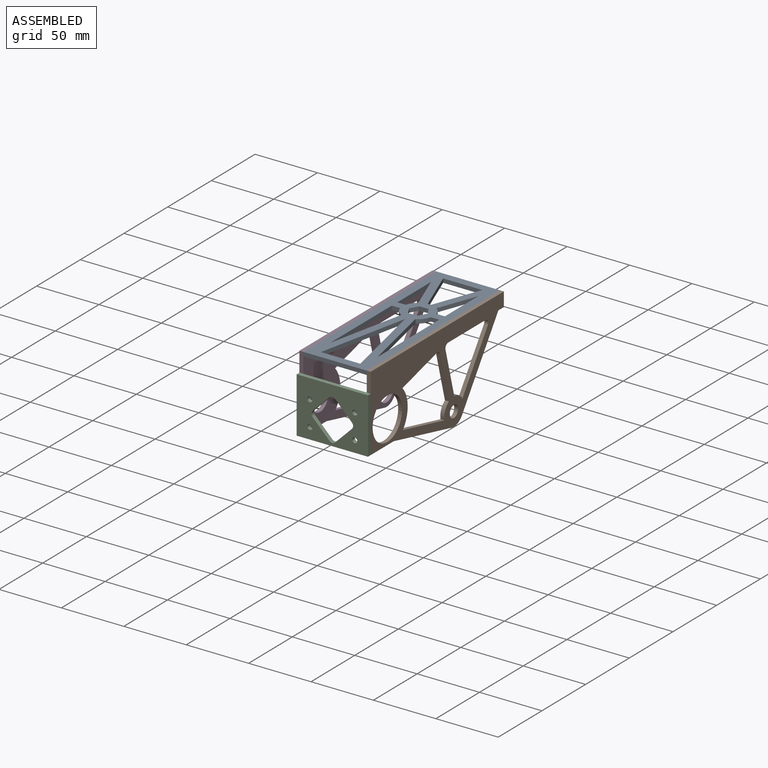
[diagram: assembled view]
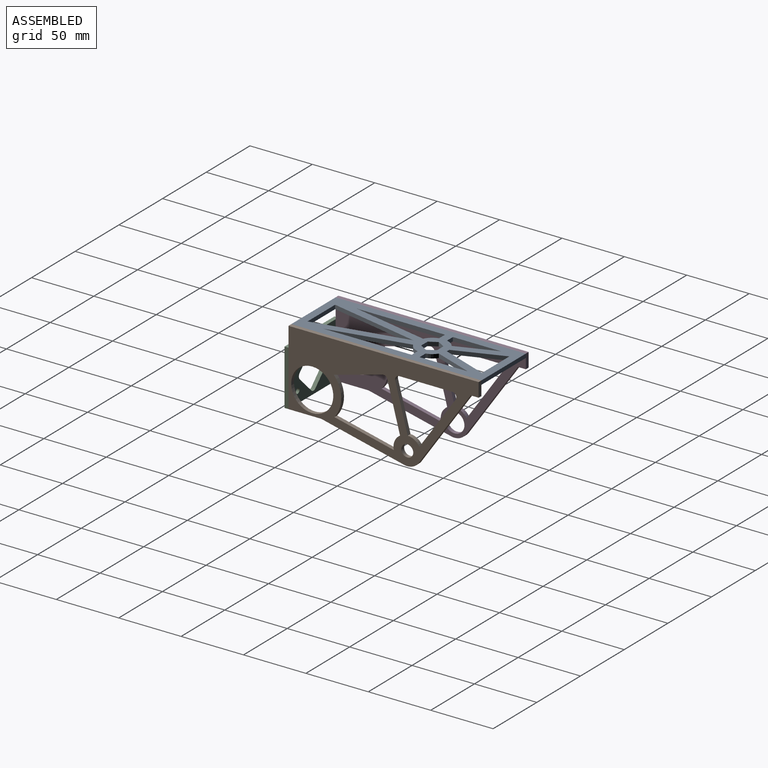
[diagram: assembled view, second angle]
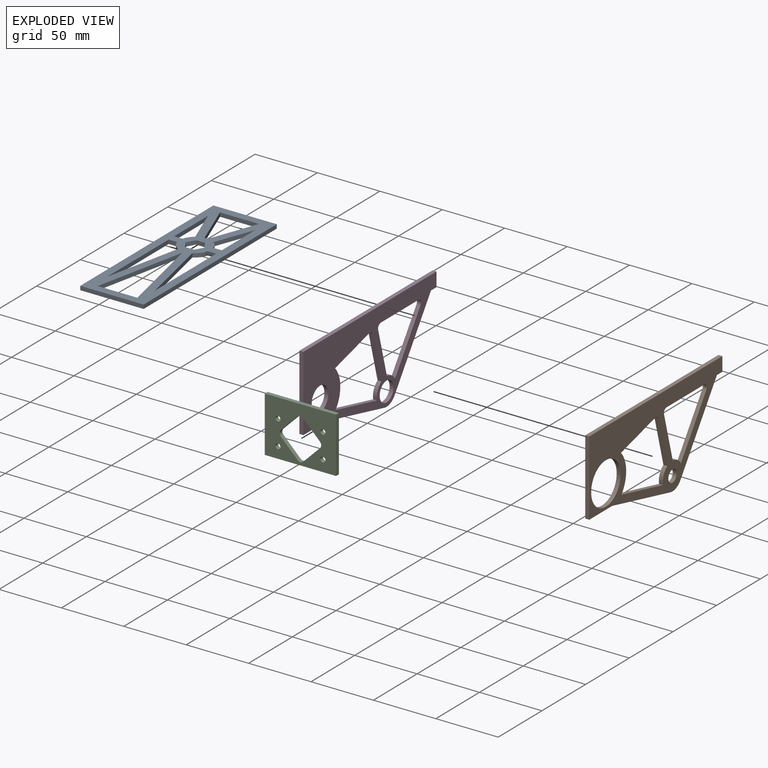
[diagram: exploded view]
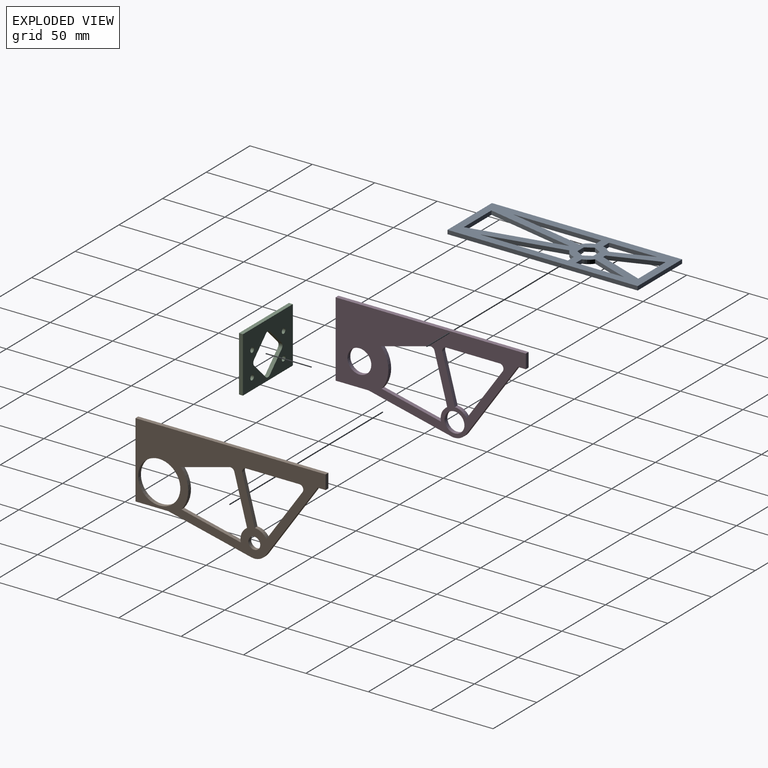
[diagram: exploded view, second angle]
ASSEMBLY  parts=4 mates=3
PART A: 35 faces, bbox 50.8x152.4x3.2 mm
  f0: plane 152.4x50.8mm, normal (0,0,1), area 4312.1mm2, adj f2,f3,f4,f5,f6,f7,f8,f9
  f1: plane 152.4x50.8mm, normal (0,0,-1), area 4312.1mm2, adj f2,f3,f4,f5,f6,f7,f8,f9
  f2: plane 50.8x3.18mm, normal (0,1,0), area 161.3mm2, adj f0,f1,f3,f11
  f3: plane 152.4x3.18mm, normal (-1,0,0), area 483.9mm2, adj f0,f1,f2,f4
  f4: plane 50.8x3.18mm, normal (0,-1,0), area 161.3mm2, adj f0,f1,f3,f11
  f5: plane 7.33x3.18mm, normal (0,-1,0), area 23.3mm2, adj f0,f1,f6,f10
  f6: plane 6.35x3.67mm, normal (-0.87,-0.5,0), area 23.3mm2, adj f0,f1,f5,f7
  f7: plane 6.35x3.67mm, normal (-0.87,0.5,0), area 23.3mm2, adj f0,f1,f6,f8
  f8: plane 7.33x3.18mm, normal (0,1,0), area 23.3mm2, adj f0,f1,f7,f9
  f9: plane 6.35x3.67mm, normal (0.87,0.5,0), area 23.3mm2, adj f0,f1,f8,f10
  f10: plane 6.35x3.67mm, normal (0.87,-0.5,0), area 23.3mm2, adj f0,f1,f5,f9
  f11: plane 152.4x3.18mm, normal (1,0,0), area 483.9mm2, adj f0,f1,f2,f4
  f12: plane 31.32x3.18mm, normal (0,-1,0), area 99.4mm2, adj f0,f1,f13,f15
  f13: plane 38.17x14.31mm, normal (0.94,0.35,0), area 129.4mm2, adj f0,f1,f12,f14
  f14: cylinder r=12.7mm len=3.18mm, axis (0,0,1), area 8.6mm2, adj f0,f1,f13,f15
  f15: plane 38.17x14.31mm, normal (-0.94,0.35,0), area 129.4mm2, adj f0,f1,f12,f14
  f16: plane 73.75x15.8mm, normal (-0.98,-0.21,0), area 239.5mm2, adj f0,f1,f17,f18
  f17: plane 73.75x15.8mm, normal (0.98,-0.21,0), area 239.5mm2, adj f0,f1,f16,f18
  f18: plane 31.61x3.18mm, normal (0,1,0), area 100.3mm2, adj f0,f1,f16,f17
  f19: plane 62.39x13.37mm, normal (0.98,0.21,0), area 202.6mm2, adj f0,f1,f20,f22
  f20: plane 70.57x3.18mm, normal (-1,0,0), area 224.1mm2, adj f0,f1,f19,f21
  f21: plane 6.75x3.18mm, normal (0,-1,0), area 21.4mm2, adj f0,f1,f20,f22
  f22: cylinder r=12.7mm len=8.18mm, axis (0,0,1), area 34.4mm2, adj f0,f1,f19,f21
  f23: plane 6.75x3.18mm, normal (0,-1,0), area 21.4mm2, adj f0,f1,f24,f26
  f24: plane 70.57x3.18mm, normal (1,0,0), area 224.1mm2, adj f0,f1,f23,f25
  f25: plane 62.39x13.37mm, normal (-0.98,0.21,0), area 202.6mm2, adj f0,f1,f24,f26
  f26: cylinder r=12.7mm len=8.18mm, axis (0,0,1), area 34.4mm2, adj f0,f1,f23,f25
  f27: plane 38.58x3.18mm, normal (1,0,0), area 122.5mm2, adj f0,f1,f28,f30
  f28: plane 6.75x3.18mm, normal (0,1,0), area 21.4mm2, adj f0,f1,f27,f29
  f29: cylinder r=12.7mm len=7.22mm, axis (0,0,1), area 28.5mm2, adj f0,f1,f28,f30
  f30: plane 31.36x11.76mm, normal (-0.94,-0.35,0), area 106.3mm2, adj f0,f1,f27,f29
  f31: cylinder r=12.7mm len=7.22mm, axis (0,0,1), area 28.5mm2, adj f0,f1,f32,f34
  f32: plane 6.75x3.18mm, normal (0,1,0), area 21.4mm2, adj f0,f1,f31,f33
  f33: plane 38.58x3.18mm, normal (-1,0,0), area 122.5mm2, adj f0,f1,f32,f34
  f34: plane 31.36x11.76mm, normal (0.94,-0.35,0), area 106.3mm2, adj f0,f1,f31,f33
PART B: 24 faces, bbox 3.2x152.4x76.2 mm
  f0: plane 11.33x3.18mm, normal (0,1,0), area 36mm2, adj f1,f3,f5,f11
  f1: plane 152.4x76.2mm, normal (-1,0,0), area 4536.1mm2, adj f0,f2,f3,f4,f6,f7,f8,f9
  f2: plane 60.33x3.18mm, normal (0,-1,0), area 191.5mm2, adj f1,f3,f5,f7
  f3: plane 152.4x3.18mm, normal (0,0,1), area 483.9mm2, adj f0,f1,f2,f5
  f4: cylinder r=4.76mm len=9.53mm, axis (-1,0,0), area 95mm2, adj f1,f5
  f5: plane 152.4x76.2mm, normal (1,0,0), area 4536.1mm2, adj f0,f2,f3,f4,f6,f7,f8,f9
  f6: cylinder r=16.89mm len=33.78mm, axis (-1,0,0), area 337mm2, adj f1,f5
  f7: plane 26.3x3.18mm, normal (0,0,-1), area 83.5mm2, adj f1,f2,f5,f8
  f8: plane 66.41x15.58mm, normal (0,-0.23,-0.97), area 216.6mm2, adj f1,f5,f7,f9
  f9: cylinder r=11.11mm len=11.67mm, axis (-1,0,0), area 42.2mm2, adj f1,f5,f8,f10
  f10: plane 60.09x41.67mm, normal (0,0.82,-0.57), area 232.2mm2, adj f1,f5,f9,f11
  f11: plane 6.35x3.18mm, normal (0,0,-1), area 20.2mm2, adj f0,f1,f5,f10
  f12: cylinder r=3.17mm len=3.89mm, axis (-1,0,0), area 15.8mm2, adj f1,f5,f13,f17
  f13: plane 38.1x10.21mm, normal (0,-0.97,-0.26), area 125.2mm2, adj f1,f5,f12,f14
  f14: cylinder r=11.11mm len=11.81mm, axis (-1,0,0), area 43.5mm2, adj f1,f5,f13,f15
  f15: plane 47.58x11.16mm, normal (0,0.23,0.97), area 155.2mm2, adj f1,f5,f14,f16
  f16: cylinder r=23.24mm len=30.54mm, axis (-1,0,0), area 105.8mm2, adj f1,f5,f15,f17
  f17: plane 39x10.45mm, normal (0,0.26,-0.97), area 128.2mm2, adj f1,f5,f12,f16
  f18: cylinder r=3.17mm len=4.98mm, axis (-1,0,0), area 21.9mm2, adj f1,f5,f19,f23
  f19: plane 41.87x29.03mm, normal (0,-0.82,0.57), area 161.8mm2, adj f1,f5,f18,f20
  f20: cylinder r=11.11mm len=9.32mm, axis (-1,0,0), area 36mm2, adj f1,f5,f19,f21
  f21: plane 37.28x9.99mm, normal (0,0.97,0.26), area 122.5mm2, adj f1,f5,f20,f22
  f22: cylinder r=3.17mm len=4mm, axis (-1,0,0), area 18.5mm2, adj f1,f5,f21,f23
  f23: plane 42.67x3.18mm, normal (0,0,-1), area 135.5mm2, adj f1,f5,f18,f22
PART C: 18 faces, bbox 57.2x3.2x44.5 mm
  f0: plane 57.15x44.45mm, normal (0,-1,0), area 1849.7mm2, adj f2,f3,f4,f5,f6,f7,f8,f9
  f1: plane 57.15x44.45mm, normal (0,1,0), area 1849.7mm2, adj f2,f3,f4,f5,f6,f7,f8,f9
  f2: plane 57.15x3.18mm, normal (0,0,1), area 181.5mm2, adj f0,f1,f3,f5
  f3: plane 44.45x3.18mm, normal (-1,0,0), area 141.1mm2, adj f0,f1,f2,f4
  f4: plane 57.15x3.18mm, normal (0,0,-1), area 181.5mm2, adj f0,f1,f3,f5
  f5: plane 44.45x3.18mm, normal (1,0,0), area 141.1mm2, adj f0,f1,f2,f4
  f6: cylinder r=2.02mm len=4.04mm, axis (0,-1,0), area 40.3mm2, adj f0,f1
  f7: cylinder r=2.02mm len=4.04mm, axis (0,-1,0), area 40.3mm2, adj f0,f1
  f8: cylinder r=2.02mm len=4.04mm, axis (0,-1,0), area 40.3mm2, adj f0,f1
  f9: cylinder r=2.02mm len=4.04mm, axis (0,-1,0), area 40.3mm2, adj f0,f1
  f10: plane 13.51x13.51mm, normal (-0.71,0,-0.71), area 60.7mm2, adj f0,f1,f11,f17
  f11: cylinder r=3.17mm len=4.49mm, axis (0,-1,0), area 15.8mm2, adj f0,f1,f10,f12
  f12: plane 13.51x13.51mm, normal (0.71,0,-0.71), area 60.7mm2, adj f0,f1,f11,f13
  f13: cylinder r=3.17mm len=4.49mm, axis (0,-1,0), area 15.8mm2, adj f0,f1,f12,f14
  f14: plane 13.51x13.51mm, normal (0.71,0,0.71), area 60.7mm2, adj f0,f1,f13,f15
  f15: cylinder r=3.17mm len=4.49mm, axis (0,-1,0), area 15.8mm2, adj f0,f1,f14,f16
  f16: plane 13.51x13.51mm, normal (-0.71,0,0.71), area 60.7mm2, adj f0,f1,f15,f17
  f17: cylinder r=3.17mm len=4.49mm, axis (0,-1,0), area 15.8mm2, adj f0,f1,f10,f16
PART D: 24 faces, bbox 3.2x152.4x76.2 mm
  f0: plane 152.4x76.2mm, normal (1,0,0), area 5020.8mm2, adj f2,f3,f4,f5,f6,f7,f8,f9
  f1: plane 152.4x76.2mm, normal (-1,0,0), area 5020.8mm2, adj f2,f3,f4,f5,f6,f7,f8,f9
  f2: plane 152.4x3.18mm, normal (0,0,1), area 483.9mm2, adj f0,f1,f3,f4
  f3: plane 60.33x3.18mm, normal (0,-1,0), area 191.5mm2, adj f0,f1,f2,f17
  f4: plane 11.33x3.18mm, normal (0,1,0), area 36mm2, adj f0,f1,f2,f8
  f5: cylinder r=7.94mm len=15.88mm, axis (-1,0,0), area 158.3mm2, adj f0,f1
  f6: cylinder r=9.53mm len=19.05mm, axis (1,0,0), area 190mm2, adj f0,f1
  f7: cylinder r=11.11mm len=11.67mm, axis (1,0,0), area 42.2mm2, adj f0,f1,f9,f16
  f8: plane 6.35x3.18mm, normal (0,0,-1), area 20.2mm2, adj f0,f1,f4,f9
  f9: plane 60.09x41.67mm, normal (0,0.82,-0.57), area 232.2mm2, adj f0,f1,f7,f8
  f10: plane 38.1x10.21mm, normal (0,-0.97,-0.26), area 125.2mm2, adj f0,f1,f11,f15
  f11: cylinder r=3.17mm len=3.89mm, axis (1,0,0), area 15.8mm2, adj f0,f1,f10,f12
  f12: plane 39x10.45mm, normal (0,0.26,-0.97), area 128.2mm2, adj f0,f1,f11,f13
  f13: cylinder r=23.24mm len=30.54mm, axis (1,0,0), area 105.8mm2, adj f0,f1,f12,f14
  f14: plane 47.58x11.16mm, normal (0,0.23,0.97), area 155.2mm2, adj f0,f1,f13,f15
  f15: cylinder r=11.11mm len=11.81mm, axis (1,0,0), area 43.5mm2, adj f0,f1,f10,f14
  f16: plane 66.41x15.58mm, normal (0,-0.23,-0.97), area 216.6mm2, adj f0,f1,f7,f17
  f17: plane 26.3x3.18mm, normal (0,0,-1), area 83.5mm2, adj f0,f1,f3,f16
  f18: cylinder r=11.11mm len=9.32mm, axis (1,0,0), area 36mm2, adj f0,f1,f19,f23
  f19: plane 41.87x29.03mm, normal (0,-0.82,0.57), area 161.8mm2, adj f0,f1,f18,f20
  f20: cylinder r=3.17mm len=4.98mm, axis (1,0,0), area 21.9mm2, adj f0,f1,f19,f21
  f21: plane 42.67x3.18mm, normal (0,0,-1), area 135.5mm2, adj f0,f1,f20,f22
  f22: cylinder r=3.17mm len=4mm, axis (1,0,0), area 18.5mm2, adj f0,f1,f21,f23
  f23: plane 37.28x9.99mm, normal (0,0.97,0.26), area 122.5mm2, adj f0,f1,f18,f22
PLACE A t=(-25.47,23.4,62.72)mm
PLACE B t=(1.52,4.35,26.21)mm
PLACE C t=(-25.47,-73.43,26.21)mm
PLACE D t=(-52.46,4.35,26.21)mm
MATE fastened B.f1 <-> A.f11  axis (-1,0,0) through (-0.07,4.35,64.31)mm
MATE fastened C.f1 <-> B.f2  axis (0,1,0) through (3.1,-71.85,3.98)mm
MATE fastened A.f3 <-> D.f0  axis (-1,0,0) through (-50.87,4.35,64.31)mm
